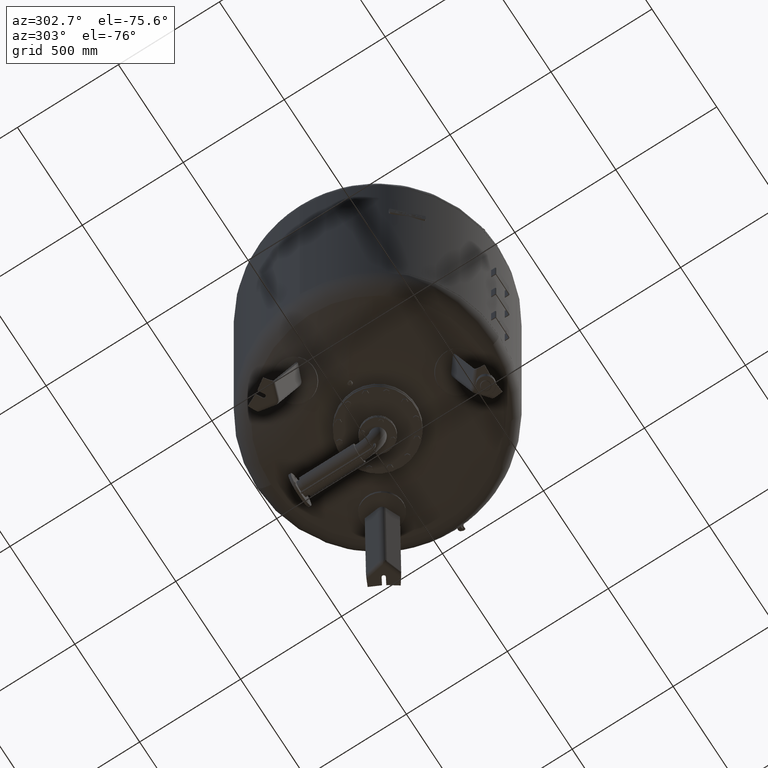
[diagram: clean part render]
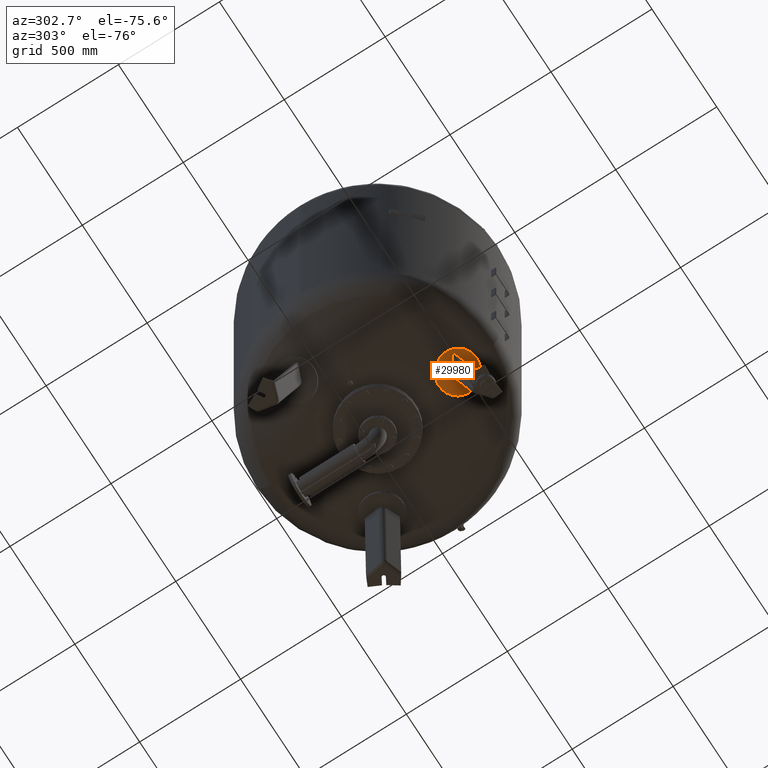
[diagram: same view with one face highlighted and labeled with its STEP entity id]
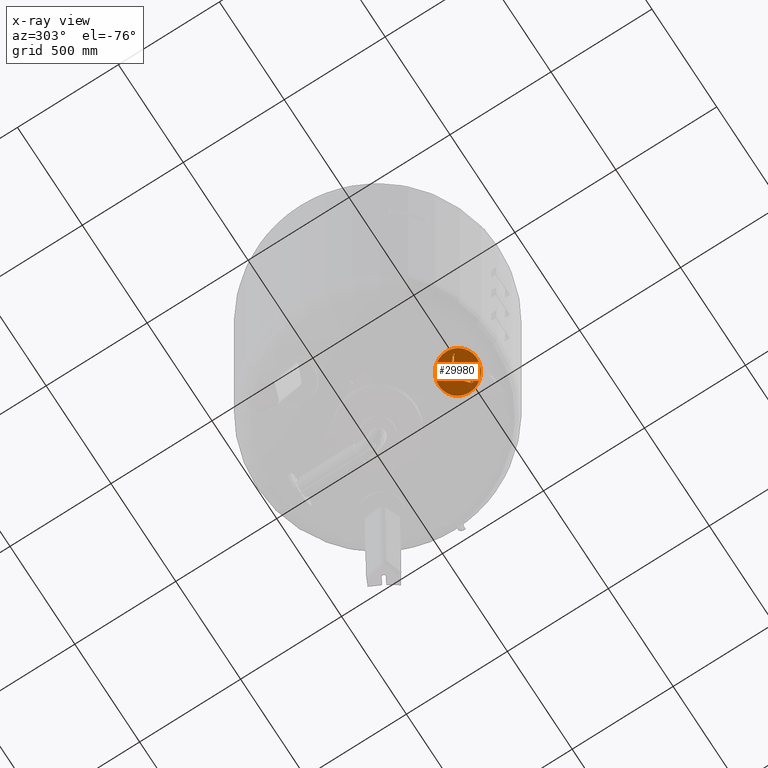
[diagram: x-ray of the same camera — body ghosted, the highlighted face saturated]
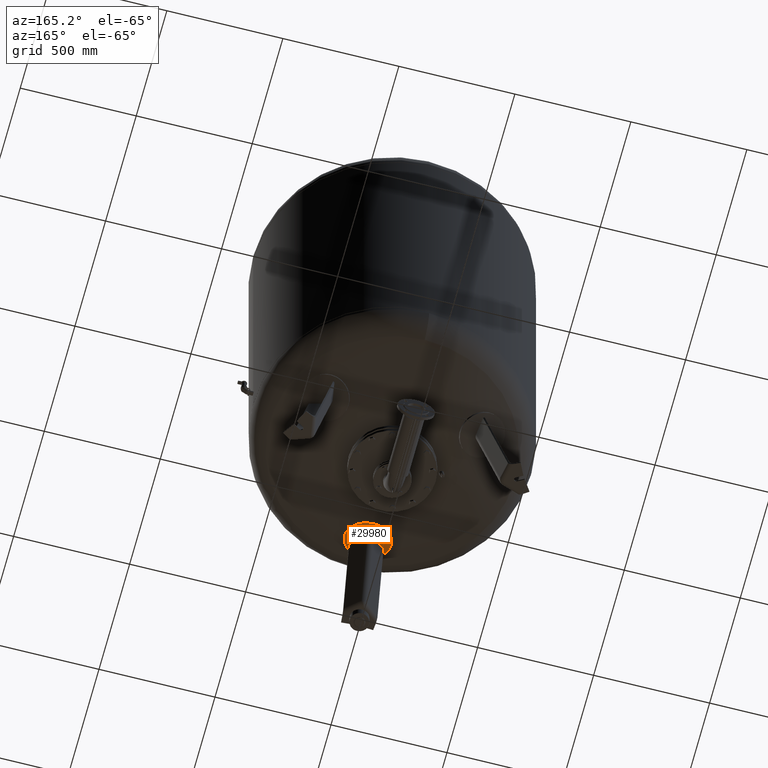
[diagram: same view with one face highlighted and labeled with its STEP entity id]
A machine part, auxiliary view. The second image highlights one B-rep face of the part: STEP entity #29980.
The next image is the same camera in x-ray: the body ghosted, the highlighted face saturated — about 16% of this face is hidden behind the body in this view.
A second angle (auxiliary view) of the same face is appended — the face is thin or edge-on in the first view.
In plain terms, the highlighted spherical surface has radius 1006 mm.
Its self-contained STEP definition (entity closure, byte-faithful):
#29210=CARTESIAN_POINT('',(0.165533239024324,-302.537235778656510,491.033440505856730));
#29211=VERTEX_POINT('',#29210);
#29220=CARTESIAN_POINT('',(0.165533239024162,-491.640950898519860,556.147071397288190));
#29221=VERTEX_POINT('',#29220);
#29222=CARTESIAN_POINT('',(0.165533239024249,-397.089093338588210,523.590255951572540));
#29223=DIRECTION('',(-2.711699E-016,-0.325568154457157,-0.945518575599317));
#29224=DIRECTION('',(7.481614E-016,0.945518575599317,-0.325568154457157));
#29225=AXIS2_PLACEMENT_3D('',#29222,#29223,#29224);
#29226=CIRCLE('',#29225,100.0);
#29227=EDGE_CURVE('',#29221,#29211,#29226,.T.);
#29847=CARTESIAN_POINT('',(0.165533239024520,-71.189679025724899,1470.070880027170500));
#29848=DIRECTION('',(1.0,0.0,0.0));
#29849=DIRECTION('',(7.481614E-016,0.945518575599317,-0.325568154457157));
#29850=AXIS2_PLACEMENT_3D('',#29847,#29848,#29849);
#29851=SPHERICAL_SURFACE('',#29850,1006.0);
#29852=CARTESIAN_POINT('',(0.165533239024249,-397.089093338588210,523.590255951572540));
#29853=DIRECTION('',(-2.711699E-016,-0.325568154457157,-0.945518575599317));
#29854=DIRECTION('',(7.481614E-016,0.945518575599317,-0.325568154457157));
#29855=AXIS2_PLACEMENT_3D('',#29852,#29853,#29854);
#29856=CIRCLE('',#29855,100.0);
#29857=EDGE_CURVE('',#29211,#29221,#29856,.T.);
#29858=ORIENTED_EDGE('',*,*,#29857,.T.);
#29859=ORIENTED_EDGE('',*,*,#29227,.T.);
#29860=EDGE_LOOP('',(#29858,#29859));
#29861=FACE_OUTER_BOUND('',#29860,.T.);
#29862=CARTESIAN_POINT('',(16.136450826554654,-374.264158951643140,510.942739782579960));
#29863=VERTEX_POINT('',#29862);
#29864=CARTESIAN_POINT('',(73.500000000000114,-419.920615973365670,529.302688812935000));
#29865=VERTEX_POINT('',#29864);
#29866=CARTESIAN_POINT('',(-41.020088505273414,-118.861225454164180,1480.203780025492300));
#29867=DIRECTION('',(-0.645458033062182,-0.747104967402682,0.158802063077709));
#29868=DIRECTION('',(-5.092368E-017,-0.207911690817760,-0.978147600733805));
#29869=AXIS2_PLACEMENT_3D('',#29866,#29867,#29868);
#29870=CIRCLE('',#29869,1003.974348556914600);
#29871=EDGE_CURVE('',#29863,#29865,#29870,.T.);
#29872=ORIENTED_EDGE('',*,*,#29871,.F.);
#29873=CARTESIAN_POINT('',(-16.136450826554444,-374.263049545852250,510.947959126467540));
#29874=VERTEX_POINT('',#29873);
#29875=CARTESIAN_POINT('',(-16.136450826554444,-374.263049545852250,510.947959126467540));
#29876=CARTESIAN_POINT('',(-15.737400566579936,-373.941341299804830,510.839519935653980));
#29877=CARTESIAN_POINT('',(-15.327147909001727,-373.631073126292680,510.734934896781790));
#29878=CARTESIAN_POINT('',(-14.046721065585743,-372.723800123874070,510.429103824092580));
#29879=CARTESIAN_POINT('',(-13.143904252568687,-372.166153938226610,510.241116411709470));
#29880=CARTESIAN_POINT('',(-11.271425572263219,-371.166623030208200,509.904132145277740));
#29881=CARTESIAN_POINT('',(-10.300484546888351,-370.724055357616980,509.754905007621520));
#29882=CARTESIAN_POINT('',(-8.309953011693755,-369.962561360428480,509.498091049258220));
#29883=CARTESIAN_POINT('',(-7.290360884908889,-369.643638839672800,509.390505482463650));
#29884=CARTESIAN_POINT('',(-5.225144980184176,-369.134305017229170,509.218613051497130));
#29885=CARTESIAN_POINT('',(-4.179354266446703,-368.943863371464540,509.154295924989870));
#29886=CARTESIAN_POINT('',(-2.085342238614453,-368.691636756932440,509.068989992026960));
#29887=CARTESIAN_POINT('',(-1.037118907308644,-368.629866823284490,509.048006248182730));
#29888=CARTESIAN_POINT('',(1.038678789270924,-368.629938131655480,509.047670768673300));
#29889=CARTESIAN_POINT('',(2.088434223304574,-368.691965971472260,509.068378031877900));
#29890=CARTESIAN_POINT('',(4.185395383273503,-368.945066116918040,509.153252291123350));
#29891=CARTESIAN_POINT('',(5.232603134368776,-369.136123346267770,509.217414209798280));
#29892=CARTESIAN_POINT('',(7.300480784593006,-369.647020105761950,509.389117041742050));
#29893=CARTESIAN_POINT('',(8.321318171703672,-369.966890167524980,509.496668222473030));
#29894=CARTESIAN_POINT('',(10.314115908884709,-370.730577235903520,509.753530564510750));
#29895=CARTESIAN_POINT('',(11.286077877784916,-371.174390440053460,509.902840471794380));
#29896=CARTESIAN_POINT('',(13.160327133807668,-372.176668559363630,510.240100544597170));
#29897=CARTESIAN_POINT('',(14.063897342508563,-372.735819672601050,510.428281643566890));
#29898=CARTESIAN_POINT('',(15.338706105894477,-373.640872770951550,510.732921779836320));
#29899=CARTESIAN_POINT('',(15.743019211407953,-373.946953279777290,510.835954876961470));
#29900=CARTESIAN_POINT('',(16.136450826554654,-374.264158951643140,510.942739782579960));
#29901=B_SPLINE_CURVE_WITH_KNOTS('',3,(#29875,#29876,#29877,#29878,#29879,#29880,#29881,#29882,#29883,#29884,#29885,#29886,#29887,#29888,#29889,#29890,#29891,#29892,#29893,#29894,#29895,#29896,#29897,#29898,#29899,#29900),.UNSPECIFIED.,.F.,.U.,(4,2,2,2,2,2,2,2,2,2,2,2,4),(32.794903054826207,34.316215825106944,37.427572589502290,40.538929353897636,43.650286118292982,46.761642882688328,49.872999647083674,52.989036057429090,56.105072467774505,59.221108878119921,62.337145288465337,65.453181698810752,66.953203267256470),.UNSPECIFIED.);
#29902=EDGE_CURVE('',#29874,#29863,#29901,.T.);
#29903=ORIENTED_EDGE('',*,*,#29902,.F.);
#29904=CARTESIAN_POINT('',(-73.499999999999886,-419.915519590274360,529.326665410275150));
#29905=VERTEX_POINT('',#29904);
#29906=CARTESIAN_POINT('',(41.213227367519892,-118.701576953983360,1480.169845689218200));
#29907=DIRECTION('',(0.645458033062181,-0.747104967402683,0.158802063077708));
#29908=DIRECTION('',(-5.092368E-017,-0.207911690817760,-0.978147600733805));
#29909=AXIS2_PLACEMENT_3D('',#29906,#29907,#29908);
#29910=CIRCLE('',#29909,1003.987906926445600);
#29911=EDGE_CURVE('',#29905,#29874,#29910,.T.);
#29912=ORIENTED_EDGE('',*,*,#29911,.F.);
#29913=CARTESIAN_POINT('',(-72.837866169854905,-426.739853465558610,531.832862714638170));
#29914=VERTEX_POINT('',#29913);
#29915=CARTESIAN_POINT('',(-86.157992096503818,-78.958796305922419,1471.722256883460400));
#29916=DIRECTION('',(0.995793708775987,0.089621433789838,-0.019049623818306));
#29917=DIRECTION('',(-0.019126591083317,4.684664E-018,-0.999817070025078));
#29918=AXIS2_PLACEMENT_3D('',#29915,#29916,#29917);
#29919=CIRCLE('',#29918,1002.258032018108500);
#29920=EDGE_CURVE('',#29914,#29905,#29919,.T.);
#29921=ORIENTED_EDGE('',*,*,#29920,.F.);
#29922=CARTESIAN_POINT('',(-16.136450826554402,-381.686785554655330,513.325463444113210));
#29923=VERTEX_POINT('',#29922);
#29924=CARTESIAN_POINT('',(45.036832094930027,-123.127324158151000,1481.110567297756700));
#29925=DIRECTION('',(-0.645458033062181,0.747104967402683,-0.158802063077709));
#29926=DIRECTION('',(5.092368E-017,0.207911690817760,0.978147600733806));
#29927=AXIS2_PLACEMENT_3D('',#29924,#29925,#29926);
#29928=CIRCLE('',#29927,1003.595123972834800);
#29929=EDGE_CURVE('',#29923,#29914,#29928,.T.);
#29930=ORIENTED_EDGE('',*,*,#29929,.F.);
#29931=CARTESIAN_POINT('',(16.136450826554661,-381.687895827731270,513.320240019970470));
#29932=VERTEX_POINT('',#29931);
#29933=CARTESIAN_POINT('',(16.136450826554661,-381.687895827731270,513.320240019970470));
#29934=CARTESIAN_POINT('',(15.917425305939714,-381.511607533089430,513.259372289933480));
#29935=CARTESIAN_POINT('',(15.695952439713579,-381.339507062518120,513.199952659748990));
#29936=CARTESIAN_POINT('',(14.586913015032827,-380.507209166444000,512.912602619461270));
#29937=CARTESIAN_POINT('',(13.669779852160106,-379.912756080585500,512.707401644527640));
#29938=CARTESIAN_POINT('',(11.848338885347227,-378.883468349569850,512.352151483820310));
#29939=CARTESIAN_POINT('',(10.866356499818522,-378.403810947295710,512.186631956602920));
#29940=CARTESIAN_POINT('',(8.802187212801522,-377.562581990886370,511.896409636033180));
#29941=CARTESIAN_POINT('',(7.719994848307462,-377.201022464806500,511.771710833648460));
#29942=CARTESIAN_POINT('',(5.513798001781595,-376.624238266296400,511.572869613931460));
#29943=CARTESIAN_POINT('',(4.388913979679063,-376.408786196839970,511.498648705277620));
#29944=CARTESIAN_POINT('',(2.160913920860796,-376.128320363992260,511.402164326406760));
#29945=CARTESIAN_POINT('',(1.057799081638127,-376.063298101329450,511.379897910233750));
#29946=CARTESIAN_POINT('',(-1.056459078413867,-376.063225418374600,511.380239856651490));
#29947=CARTESIAN_POINT('',(-2.158193197827700,-376.128007301884400,511.402806025775310));
#29948=CARTESIAN_POINT('',(-4.383474516183127,-376.407622901955340,511.499769920900970));
#29949=CARTESIAN_POINT('',(-5.507020497440985,-376.622465269284590,511.574170645728660));
#29950=CARTESIAN_POINT('',(-7.710696223964674,-377.197686407105380,511.773237798320620));
#29951=CARTESIAN_POINT('',(-8.791702362586984,-377.558291379141450,511.897982609829510));
#29952=CARTESIAN_POINT('',(-10.853737211046138,-378.397341209090200,512.188169031350070));
#29953=CARTESIAN_POINT('',(-11.834771451332275,-378.875773874730380,512.353606595328530));
#29954=CARTESIAN_POINT('',(-13.654608922278614,-379.902464925380850,512.708592610853430));
#29955=CARTESIAN_POINT('',(-14.571053363268190,-380.495453617233860,512.913606462838740));
#29956=CARTESIAN_POINT('',(-15.685135821871459,-381.330026353306210,513.202129029618390));
#29957=CARTESIAN_POINT('',(-15.912080570595853,-381.506210876931330,513.263037646980590));
#29958=CARTESIAN_POINT('',(-16.136450826554402,-381.686785554655330,513.325463444113210));
#29959=B_SPLINE_CURVE_WITH_KNOTS('',3,(#29933,#29934,#29935,#29936,#29937,#29938,#29939,#29940,#29941,#29942,#29943,#29944,#29945,#29946,#29947,#29948,#29949,#29950,#29951,#29952,#29953,#29954,#29955,#29956,#29957,#29958),.UNSPECIFIED.,.F.,.U.,(4,2,2,2,2,2,2,2,2,2,2,2,4),(34.351574704530236,35.157137084380075,38.350021909641775,41.523419197935439,44.696816486229096,47.870213774522753,51.043611062816417,54.212988341383024,57.382365619949638,60.551742898516245,63.721120177082852,66.909986527717621,67.735047143007677),.UNSPECIFIED.);
#29960=EDGE_CURVE('',#29932,#29923,#29959,.T.);
#29961=ORIENTED_EDGE('',*,*,#29960,.F.);
#29962=CARTESIAN_POINT('',(72.837866169855147,-426.744909196530440,531.809077370483240));
#29963=VERTEX_POINT('',#29962);
#29964=CARTESIAN_POINT('',(-44.843693232683513,-123.286972658331760,1481.144501634031000));
#29965=DIRECTION('',(0.645458033062182,0.747104967402682,-0.158802063077709));
#29966=DIRECTION('',(5.092368E-017,0.207911690817760,0.978147600733805));
#29967=AXIS2_PLACEMENT_3D('',#29964,#29965,#29966);
#29968=CIRCLE('',#29967,1003.580298946269700);
#29969=EDGE_CURVE('',#29963,#29932,#29968,.T.);
#29970=ORIENTED_EDGE('',*,*,#29969,.F.);
#29971=CARTESIAN_POINT('',(86.160771363025532,-78.929250456885029,1471.715976719377300));
#29972=DIRECTION('',(-0.995793708775987,0.089621433789840,-0.019049623818306));
#29973=DIRECTION('',(-0.019126591083317,4.684664E-018,0.999817070025078));
#29974=AXIS2_PLACEMENT_3D('',#29971,#29972,#29973);
#29975=CIRCLE('',#29974,1002.286491833014600);
#29976=EDGE_CURVE('',#29865,#29963,#29975,.T.);
#29977=ORIENTED_EDGE('',*,*,#29976,.F.);
#29978=EDGE_LOOP('',(#29872,#29903,#29912,#29921,#29930,#29961,#29970,#29977));
#29979=FACE_BOUND('',#29978,.T.);
#29980=ADVANCED_FACE('',(#29861,#29979),#29851,.T.);